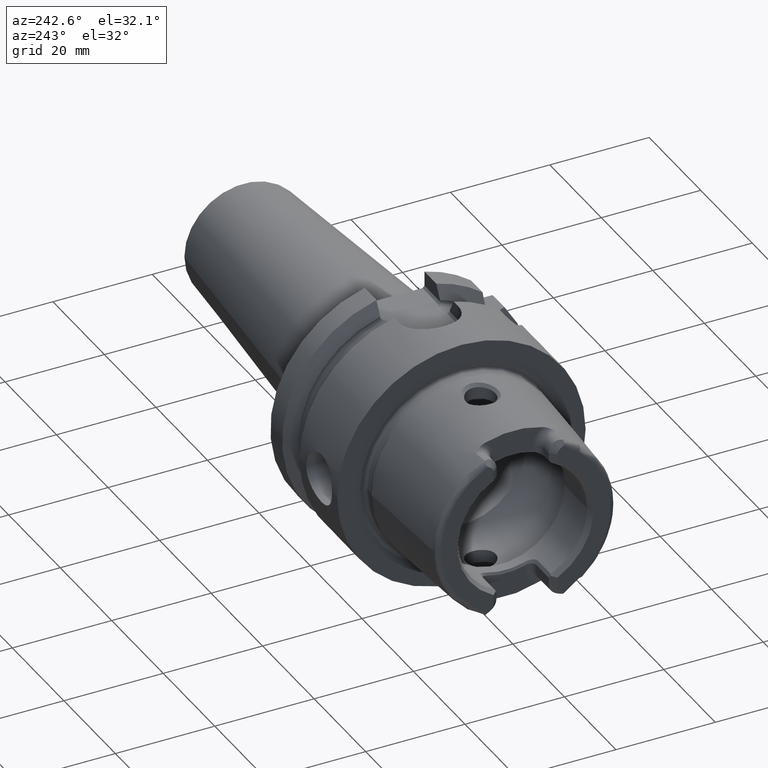
[diagram: clean part render]
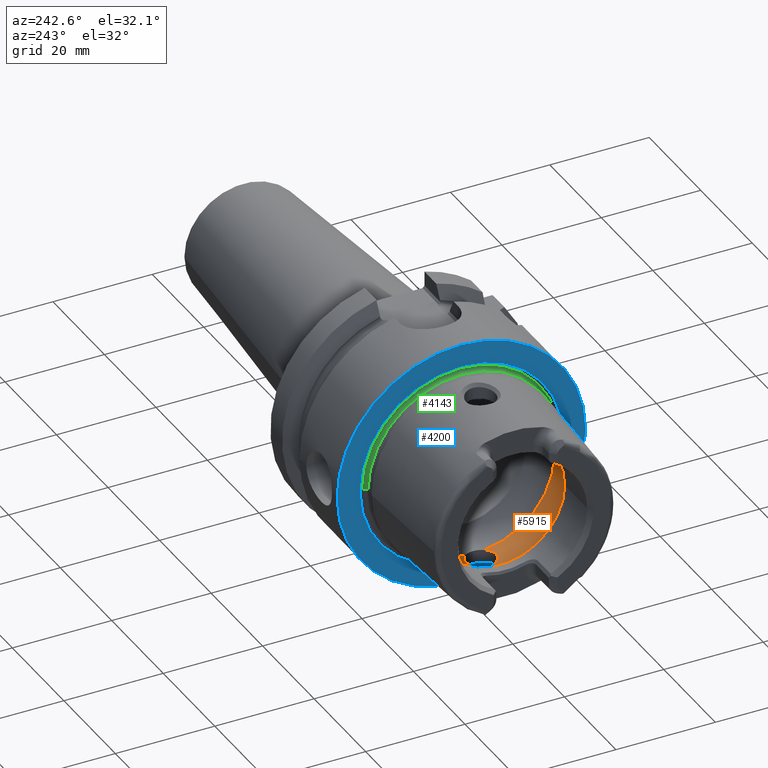
[diagram: same view with three faces highlighted in distinct colors, each labeled with its STEP entity id]
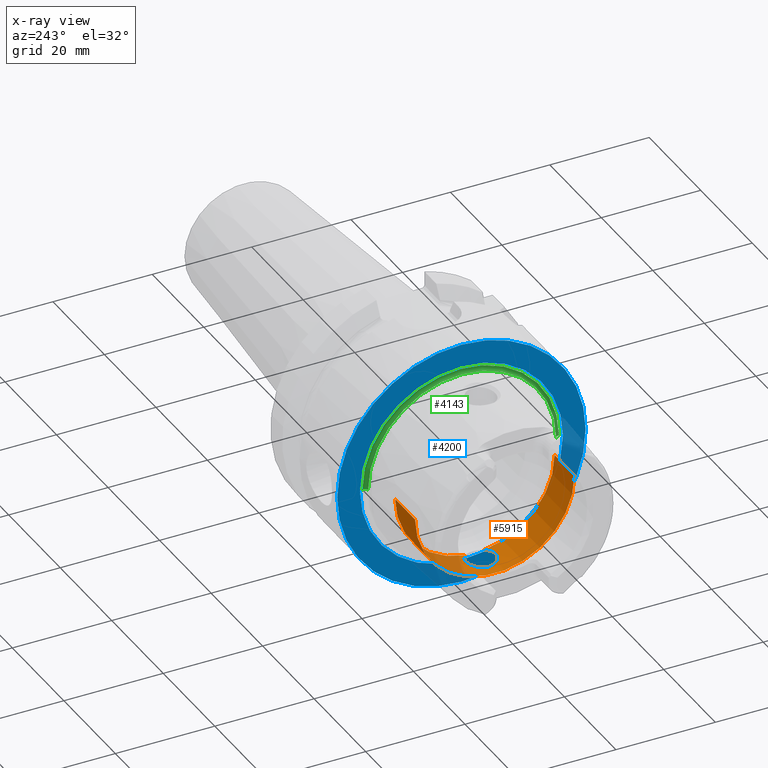
[diagram: x-ray of the same camera — body ghosted, the three highlighted faces saturated]
A machine part, auxiliary view with three faces highlighted in distinct colors.
The next image is the same camera in x-ray (body ghosted, the three faces saturated) — at least one of them is partly hidden behind the body in this view.
Their STEP definitions:

[orange] entity #5915 — the highlighted cylindrical surface (partial cylindrical patch) has radius 16.04 mm, axis along (1, 0, 0).
#2221=CARTESIAN_POINT('',(-1.05E1,0.E0,-1.604E1));
#2222=CARTESIAN_POINT('',(-1.05E1,1.763191740963E-1,-1.604E1));
#2223=CARTESIAN_POINT('',(-1.046987555200E1,5.253477994029E-1,
-1.603432074234E1));
#2224=CARTESIAN_POINT('',(-1.032624480071E1,1.054796996239E0,
-1.600805068660E1));
#2225=CARTESIAN_POINT('',(-1.009324337128E1,1.537762012423E0,
-1.596821155224E1));
#2226=CARTESIAN_POINT('',(-9.798882332884E0,1.948873803534E0,
-1.592269762358E1));
#2227=CARTESIAN_POINT('',(-9.445765012039E0,2.301280742753E0,
-1.587515480972E1));
#2228=CARTESIAN_POINT('',(-9.045097458171E0,2.586889098550E0,
-1.583068911852E1));
#2229=CARTESIAN_POINT('',(-8.609550677584E0,2.801138380999E0,
-1.579385602523E1));
#2230=CARTESIAN_POINT('',(-8.146611564409E0,2.943080687480E0,
-1.576779315560E1));
#2231=CARTESIAN_POINT('',(-7.660361378009E0,3.008589391135E0,
-1.575531324268E1));
#2232=CARTESIAN_POINT('',(-7.191101038464E0,2.995910055571E0,
-1.575774837575E1));
#2233=CARTESIAN_POINT('',(-6.738987465015E0,2.913864235980E0,
-1.577324804946E1));
#2234=CARTESIAN_POINT('',(-6.305304350117E0,2.764686721584E0,
-1.580029572703E1));
#2235=CARTESIAN_POINT('',(-5.893979991709E0,2.548203807485E0,
-1.583696220828E1));
#2236=CARTESIAN_POINT('',(-5.520457512219E0,2.269851340874E0,
-1.587956356599E1));
#2237=CARTESIAN_POINT('',(-5.306314830636E0,2.052176612319E0,
-1.590862063377E1));
#2238=CARTESIAN_POINT('',(-5.207075858867E0,1.934553923521E0,
-1.592291120106E1));
#2240=CARTESIAN_POINT('',(-5.207075858867E0,-1.934553923521E0,
-1.592291120106E1));
#2241=CARTESIAN_POINT('',(-5.307338920036E0,-2.053390411160E0,
-1.590847316329E1));
#2242=CARTESIAN_POINT('',(-5.523841242138E0,-2.273123948709E0,
-1.587911237181E1));
#2243=CARTESIAN_POINT('',(-5.902019515444E0,-2.553562325633E0,
-1.583610669924E1));
#2244=CARTESIAN_POINT('',(-6.318720192839E0,-2.770729972262E0,
-1.579923644857E1));
#2245=CARTESIAN_POINT('',(-6.757992943297E0,-2.919008304475E0,
-1.577229194272E1));
#2246=CARTESIAN_POINT('',(-7.214423389263E0,-2.998344954761E0,
-1.575728137590E1));
#2247=CARTESIAN_POINT('',(-7.684264232904E0,-3.007149607421E0,
-1.575559058329E1));
#2248=CARTESIAN_POINT('',(-8.167495895858E0,-2.938242176142E0,
-1.576870216634E1));
#2249=CARTESIAN_POINT('',(-8.626643362936E0,-2.794154826446E0,
-1.579509992881E1));
#2250=CARTESIAN_POINT('',(-9.058860590650E0,-2.578480138209E0,
-1.583206684700E1));
#2251=CARTESIAN_POINT('',(-9.456307105192E0,-2.292169912668E0,
-1.587647502488E1));
#2252=CARTESIAN_POINT('',(-9.806420698579E0,-1.939767650122E0,
-1.592380721960E1));
#2253=CARTESIAN_POINT('',(-1.009783950343E1,-1.529618765233E0,
-1.596897485908E1));
#2254=CARTESIAN_POINT('',(-1.032800399897E1,-1.049450257092E0,
-1.600836987628E1));
#2255=CARTESIAN_POINT('',(-1.047016827580E1,-5.227639918297E-1,
-1.603437608459E1));
#2256=CARTESIAN_POINT('',(-1.05E1,-1.754720639123E-1,-1.604E1));
#2257=CARTESIAN_POINT('',(-1.05E1,0.E0,-1.604E1));
#2259=CARTESIAN_POINT('',(-5.207075858867E0,0.E0,0.E0));
#2260=DIRECTION('',(-1.E0,0.E0,0.E0));
#2261=DIRECTION('',(0.E0,-1.206080999702E-1,-9.927001995676E-1));
#2262=AXIS2_PLACEMENT_3D('',#2259,#2260,#2261);
#2264=DIRECTION('',(-1.E0,0.E0,0.E0));
#2265=VECTOR('',#2264,7.745129591986E0);
#2266=CARTESIAN_POINT('',(-5.207075858867E0,-1.604E1,0.E0));
#2267=LINE('',#2266,#2265);
#2268=DIRECTION('',(-1.E0,0.E0,0.E0));
#2269=VECTOR('',#2268,7.745129591986E0);
#2270=CARTESIAN_POINT('',(-5.207075858867E0,1.604E1,0.E0));
#2271=LINE('',#2270,#2269);
#2272=CARTESIAN_POINT('',(-5.207075858867E0,0.E0,0.E0));
#2273=DIRECTION('',(-1.E0,0.E0,0.E0));
#2274=DIRECTION('',(0.E0,1.E0,0.E0));
#2275=AXIS2_PLACEMENT_3D('',#2272,#2273,#2274);
#2277=CARTESIAN_POINT('',(-5.207075858867E0,1.934553923521E0,
-1.592291120106E1));
#2308=CARTESIAN_POINT('',(-5.207075858867E0,-1.934553923521E0,
-1.592291120106E1));
#2511=CARTESIAN_POINT('',(-1.295220545085E1,0.E0,0.E0));
#2512=DIRECTION('',(-1.E0,0.E0,0.E0));
#2513=DIRECTION('',(0.E0,1.E0,0.E0));
#2514=AXIS2_PLACEMENT_3D('',#2511,#2512,#2513);
#3100=CARTESIAN_POINT('',(-1.05E1,0.E0,-1.604E1));
#3101=VERTEX_POINT('',#3100);
#3118=CARTESIAN_POINT('',(-5.207075858867E0,1.604E1,0.E0));
#3119=VERTEX_POINT('',#3118);
#3120=CARTESIAN_POINT('',(-1.295220545085E1,1.604E1,0.E0));
#3121=VERTEX_POINT('',#3120);
#3130=CARTESIAN_POINT('',(-5.207075858867E0,-1.604E1,0.E0));
#3131=VERTEX_POINT('',#3130);
#3132=CARTESIAN_POINT('',(-1.295220545085E1,-1.604E1,0.E0));
#3133=VERTEX_POINT('',#3132);
#3150=VERTEX_POINT('',#2277);
#3151=VERTEX_POINT('',#2308);
#5898=CARTESIAN_POINT('',(-2.66425E1,0.E0,0.E0));
#5899=DIRECTION('',(1.E0,0.E0,0.E0));
#5900=DIRECTION('',(0.E0,-1.E0,0.E0));
#5901=AXIS2_PLACEMENT_3D('',#5898,#5899,#5900);
#5902=CYLINDRICAL_SURFACE('',#5901,1.604E1);
#5903=ORIENTED_EDGE('',*,*,#5852,.F.);
#5904=ORIENTED_EDGE('',*,*,#5628,.F.);
#5906=ORIENTED_EDGE('',*,*,#5905,.T.);
#5907=ORIENTED_EDGE('',*,*,#5891,.T.);
#5909=ORIENTED_EDGE('',*,*,#5908,.F.);
#5910=ORIENTED_EDGE('',*,*,#5887,.F.);
#5912=ORIENTED_EDGE('',*,*,#5911,.T.);
#5913=EDGE_LOOP('',(#5903,#5904,#5906,#5907,#5909,#5910,#5912));
#5914=FACE_OUTER_BOUND('',#5913,.F.);
#5915=ADVANCED_FACE('',(#5914),#5902,.F.);
#2239=B_SPLINE_CURVE_WITH_KNOTS('',3,(#2221,#2222,#2223,#2224,#2225,#2226,#2227,
#2228,#2229,#2230,#2231,#2232,#2233,#2234,#2235,#2236,#2237,#2238),
.UNSPECIFIED.,.F.,.F.,(4,1,1,1,1,1,1,1,1,1,1,1,1,1,1,4),(0.E0,6.666666666667E-2,
1.333333333333E-1,2.E-1,2.666666666667E-1,3.333333333333E-1,4.E-1,
4.666666666667E-1,5.333333333333E-1,6.E-1,6.666666666667E-1,7.333333333333E-1,
8.E-1,8.666666666667E-1,9.333333333333E-1,1.E0),.UNSPECIFIED.);
#2258=B_SPLINE_CURVE_WITH_KNOTS('',3,(#2240,#2241,#2242,#2243,#2244,#2245,#2246,
#2247,#2248,#2249,#2250,#2251,#2252,#2253,#2254,#2255,#2256,#2257),
.UNSPECIFIED.,.F.,.F.,(4,1,1,1,1,1,1,1,1,1,1,1,1,1,1,4),(0.E0,6.666666666667E-2,
1.333333333333E-1,2.E-1,2.666666666667E-1,3.333333333333E-1,4.E-1,
4.666666666667E-1,5.333333333333E-1,6.E-1,6.666666666667E-1,7.333333333333E-1,
8.E-1,8.666666666667E-1,9.333333333333E-1,1.E0),.UNSPECIFIED.);
#2263=CIRCLE('',#2262,1.604E1);
#2276=CIRCLE('',#2275,1.604E1);
#2515=CIRCLE('',#2514,1.604E1);
#5628=EDGE_CURVE('',#3151,#3101,#2258,.T.);
#5852=EDGE_CURVE('',#3101,#3150,#2239,.T.);
#5887=EDGE_CURVE('',#3119,#3121,#2271,.T.);
#5891=EDGE_CURVE('',#3131,#3133,#2267,.T.);
#5905=EDGE_CURVE('',#3151,#3131,#2263,.T.);
#5908=EDGE_CURVE('',#3121,#3133,#2515,.T.);
#5911=EDGE_CURVE('',#3119,#3150,#2276,.T.);

[blue] entity #4200 — the highlighted planar face has unit normal (1, 0, 0).
#867=CARTESIAN_POINT('',(0.E0,0.E0,0.E0));
#868=DIRECTION('',(1.E0,0.E0,0.E0));
#869=DIRECTION('',(0.E0,1.E0,0.E0));
#870=AXIS2_PLACEMENT_3D('',#867,#868,#869);
#872=CARTESIAN_POINT('',(0.E0,0.E0,0.E0));
#873=DIRECTION('',(-1.E0,0.E0,0.E0));
#874=DIRECTION('',(0.E0,1.E0,0.E0));
#875=AXIS2_PLACEMENT_3D('',#872,#873,#874);
#877=CARTESIAN_POINT('',(0.E0,0.E0,0.E0));
#878=DIRECTION('',(-1.E0,0.E0,0.E0));
#879=DIRECTION('',(0.E0,-1.E0,0.E0));
#880=AXIS2_PLACEMENT_3D('',#877,#878,#879);
#882=CARTESIAN_POINT('',(0.E0,0.E0,0.E0));
#883=DIRECTION('',(-1.E0,0.E0,0.E0));
#884=DIRECTION('',(0.E0,1.E0,0.E0));
#885=AXIS2_PLACEMENT_3D('',#882,#883,#884);
#2762=CARTESIAN_POINT('',(0.E0,-2.04248E1,0.E0));
#2763=VERTEX_POINT('',#2762);
#2764=CARTESIAN_POINT('',(0.E0,2.04248E1,0.E0));
#2765=VERTEX_POINT('',#2764);
#3104=CARTESIAN_POINT('',(0.E0,2.5E1,0.E0));
#3105=CARTESIAN_POINT('',(0.E0,-2.5E1,0.E0));
#3106=VERTEX_POINT('',#3104);
#3107=VERTEX_POINT('',#3105);
#4185=CARTESIAN_POINT('',(0.E0,0.E0,0.E0));
#4186=DIRECTION('',(1.E0,0.E0,0.E0));
#4187=DIRECTION('',(0.E0,-1.E0,0.E0));
#4188=AXIS2_PLACEMENT_3D('',#4185,#4186,#4187);
#4189=PLANE('',#4188);
#4191=ORIENTED_EDGE('',*,*,#4190,.T.);
#4193=ORIENTED_EDGE('',*,*,#4192,.F.);
#4194=EDGE_LOOP('',(#4191,#4193));
#4195=FACE_OUTER_BOUND('',#4194,.F.);
#4196=ORIENTED_EDGE('',*,*,#4180,.T.);
#4197=ORIENTED_EDGE('',*,*,#4164,.T.);
#4198=EDGE_LOOP('',(#4196,#4197));
#4199=FACE_BOUND('',#4198,.F.);
#4200=ADVANCED_FACE('',(#4195,#4199),#4189,.F.);
#871=CIRCLE('',#870,2.5E1);
#876=CIRCLE('',#875,2.5E1);
#881=CIRCLE('',#880,2.04248E1);
#886=CIRCLE('',#885,2.04248E1);
#4164=EDGE_CURVE('',#2765,#2763,#886,.T.);
#4180=EDGE_CURVE('',#2763,#2765,#881,.T.);
#4190=EDGE_CURVE('',#3106,#3107,#871,.T.);
#4192=EDGE_CURVE('',#3106,#3107,#876,.T.);

[green] entity #4143 — the highlighted toroidal blend (fillet) surface has major radius 19.5548 mm and minor (blend) radius 0.6 mm.
#834=CARTESIAN_POINT('',(-3.021696305237E-1,0.E0,0.E0));
#835=DIRECTION('',(-1.E0,0.E0,0.E0));
#836=DIRECTION('',(0.E0,-1.E0,0.E0));
#837=AXIS2_PLACEMENT_3D('',#834,#835,#836);
#839=CARTESIAN_POINT('',(2.560809102655E-1,0.E0,0.E0));
#840=DIRECTION('',(-1.E0,0.E0,0.E0));
#841=DIRECTION('',(0.E0,-1.E0,0.E0));
#842=AXIS2_PLACEMENT_3D('',#839,#840,#841);
#844=CARTESIAN_POINT('',(-3.021696305237E-1,1.95548E1,0.E0));
#845=DIRECTION('',(0.E0,0.E0,-1.E0));
#846=DIRECTION('',(9.304175679820E-1,3.665012267243E-1,0.E0));
#847=AXIS2_PLACEMENT_3D('',#844,#845,#846);
#849=CARTESIAN_POINT('',(-3.021696305237E-1,-1.95548E1,0.E0));
#850=DIRECTION('',(0.E0,0.E0,1.E0));
#851=DIRECTION('',(9.304175679820E-1,-3.665012267243E-1,0.E0));
#852=AXIS2_PLACEMENT_3D('',#849,#850,#851);
#2738=CARTESIAN_POINT('',(2.560809102655E-1,-1.977470073603E1,0.E0));
#2739=CARTESIAN_POINT('',(-3.021696305237E-1,-1.89548E1,0.E0));
#2740=VERTEX_POINT('',#2738);
#2741=VERTEX_POINT('',#2739);
#2746=CARTESIAN_POINT('',(2.560809102655E-1,1.977470073603E1,0.E0));
#2747=CARTESIAN_POINT('',(-3.021696305237E-1,1.89548E1,0.E0));
#2748=VERTEX_POINT('',#2746);
#2749=VERTEX_POINT('',#2747);
#4129=CARTESIAN_POINT('',(-3.021696305237E-1,0.E0,0.E0));
#4130=DIRECTION('',(-1.E0,0.E0,0.E0));
#4131=DIRECTION('',(0.E0,1.E0,0.E0));
#4132=AXIS2_PLACEMENT_3D('',#4129,#4130,#4131);
#4133=TOROIDAL_SURFACE('',#4132,1.95548E1,6.E-1);
#4135=ORIENTED_EDGE('',*,*,#4134,.T.);
#4136=ORIENTED_EDGE('',*,*,#4124,.T.);
#4138=ORIENTED_EDGE('',*,*,#4137,.F.);
#4140=ORIENTED_EDGE('',*,*,#4139,.F.);
#4141=EDGE_LOOP('',(#4135,#4136,#4138,#4140));
#4142=FACE_OUTER_BOUND('',#4141,.F.);
#4143=ADVANCED_FACE('',(#4142),#4133,.F.);
#838=CIRCLE('',#837,1.89548E1);
#843=CIRCLE('',#842,1.977470073603E1);
#848=CIRCLE('',#847,6.E-1);
#853=CIRCLE('',#852,6.E-1);
#4124=EDGE_CURVE('',#2741,#2749,#838,.T.);
#4134=EDGE_CURVE('',#2740,#2741,#853,.T.);
#4137=EDGE_CURVE('',#2748,#2749,#848,.T.);
#4139=EDGE_CURVE('',#2740,#2748,#843,.T.);